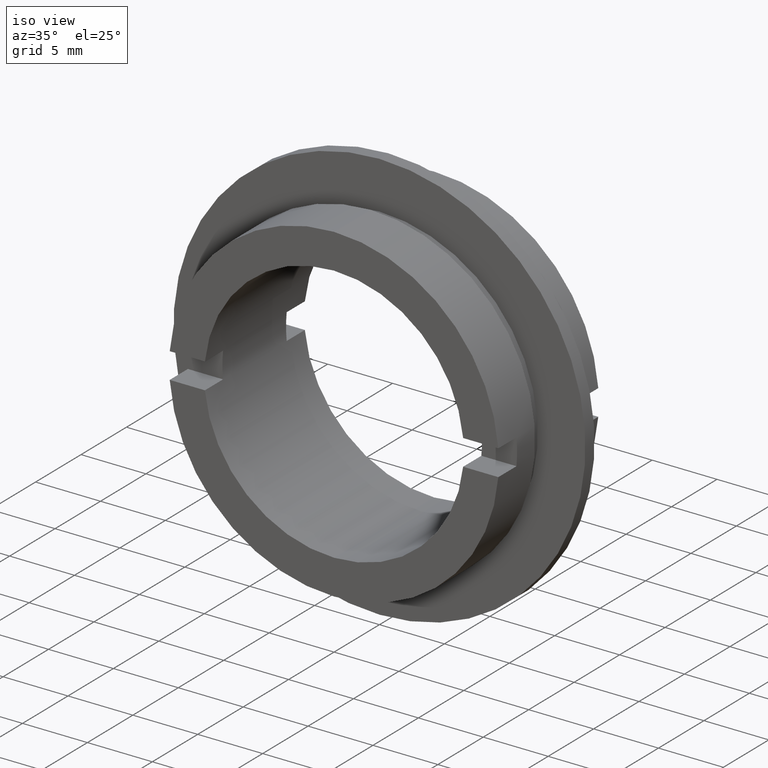
[diagram: clean part render]
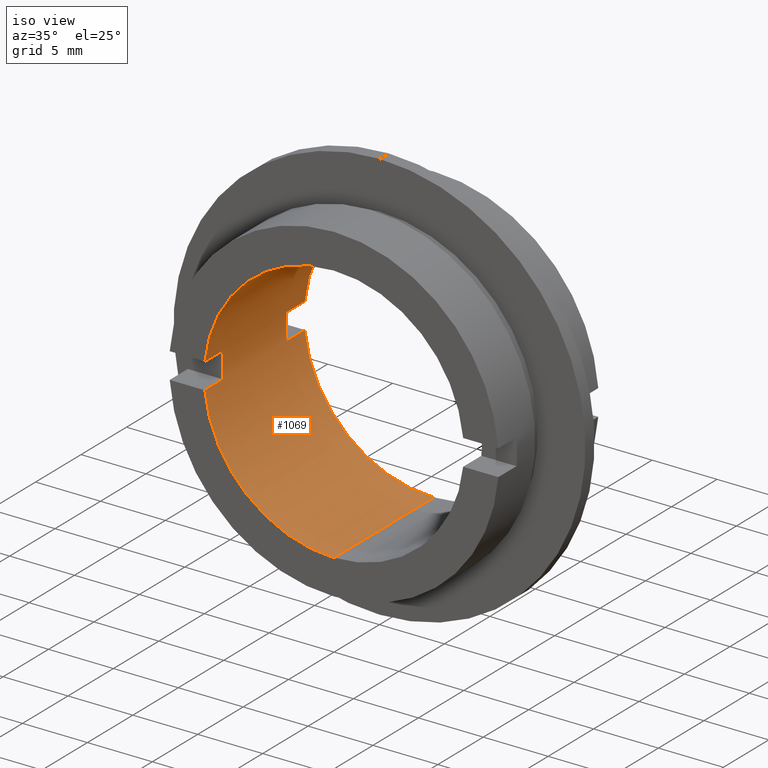
[diagram: same view with one face highlighted and labeled with its STEP entity id]
A machine part, iso view. The second image highlights one B-rep face of the part: STEP entity #1069.
In plain terms, the highlighted cylindrical surface (partial cylindrical patch) has radius 10 mm, axis along (-0, 1, -0).
Its self-contained STEP definition (entity closure, byte-faithful):
#14 = EDGE_CURVE ( 'NONE', #242, #751, #621, .T. ) ;
#21 = DIRECTION ( 'NONE',  ( -0.0000000000000000000, 1.000000000000000000, -0.0000000000000000000 ) ) ;
#22 = EDGE_CURVE ( 'NONE', #896, #659, #65, .T. ) ;
#29 = VERTEX_POINT ( 'NONE', #819 ) ;
#41 = EDGE_CURVE ( 'NONE', #730, #29, #560, .T. ) ;
#52 = CARTESIAN_POINT ( 'NONE',  ( 0.0000000000000000000, 0.0000000000000000000, 9.999999999999996400 ) ) ;
#65 = LINE ( 'NONE', #1141, #594 ) ;
#80 = ORIENTED_EDGE ( 'NONE', *, *, #572, .F. ) ;
#83 = EDGE_CURVE ( 'NONE', #858, #886, #479, .T. ) ;
#89 = EDGE_CURVE ( 'NONE', #730, #467, #763, .T. ) ;
#90 = DIRECTION ( 'NONE',  ( 0.0000000000000000000, 0.0000000000000000000, 1.000000000000000000 ) ) ;
#91 = DIRECTION ( 'NONE',  ( 0.0000000000000000000, 0.0000000000000000000, 1.000000000000000000 ) ) ;
#92 = ORIENTED_EDGE ( 'NONE', *, *, #22, .F. ) ;
#96 = ORIENTED_EDGE ( 'NONE', *, *, #14, .F. ) ;
#112 = VERTEX_POINT ( 'NONE', #645 ) ;
#143 = CARTESIAN_POINT ( 'NONE',  ( 1.224646799147352900E-015, 11.00000000000000000, -9.999999999999996400 ) ) ;
#144 = CARTESIAN_POINT ( 'NONE',  ( -9.949874371066195900, 22.67749945107591400, -0.9999999999999943400 ) ) ;
#145 = CARTESIAN_POINT ( 'NONE',  ( -9.949874371066195900, 11.00000000000000000, -0.9999999999999978900 ) ) ;
#148 = DIRECTION ( 'NONE',  ( -0.0000000000000000000, -1.000000000000000000, -0.0000000000000000000 ) ) ;
#154 = CIRCLE ( 'NONE', #1012, 9.999999999999996400 ) ;
#160 = DIRECTION ( 'NONE',  ( -0.0000000000000000000, 1.000000000000000000, -0.0000000000000000000 ) ) ;
#175 = DIRECTION ( 'NONE',  ( -0.0000000000000000000, 1.000000000000000000, -0.0000000000000000000 ) ) ;
#216 = EDGE_CURVE ( 'NONE', #467, #659, #1099, .T. ) ;
#222 = DIRECTION ( 'NONE',  ( -0.0000000000000000000, 1.000000000000000000, -0.0000000000000000000 ) ) ;
#226 = VECTOR ( 'NONE', #827, 1000.000000000000000 ) ;
#242 = VERTEX_POINT ( 'NONE', #701 ) ;
#249 = CARTESIAN_POINT ( 'NONE',  ( 0.0000000000000000000, 11.00000000000000000, 9.999999999999996400 ) ) ;
#254 = AXIS2_PLACEMENT_3D ( 'NONE', #1035, #650, #91 ) ;
#258 = VECTOR ( 'NONE', #160, 1000.000000000000000 ) ;
#270 = EDGE_CURVE ( 'NONE', #816, #896, #154, .T. ) ;
#276 = DIRECTION ( 'NONE',  ( -0.0000000000000000000, 1.000000000000000000, -0.0000000000000000000 ) ) ;
#290 = AXIS2_PLACEMENT_3D ( 'NONE', #900, #21, #874 ) ;
#292 = CYLINDRICAL_SURFACE ( 'NONE', #290, 9.999999999999996400 ) ;
#331 = CARTESIAN_POINT ( 'NONE',  ( -9.949874371066195900, 11.00000000000000000, 1.000000000000001300 ) ) ;
#343 = ORIENTED_EDGE ( 'NONE', *, *, #441, .F. ) ;
#390 = DIRECTION ( 'NONE',  ( -0.0000000000000000000, 1.000000000000000000, -0.0000000000000000000 ) ) ;
#393 = ORIENTED_EDGE ( 'NONE', *, *, #860, .F. ) ;
#403 = EDGE_CURVE ( 'NONE', #858, #816, #877, .T. ) ;
#420 = CARTESIAN_POINT ( 'NONE',  ( 0.0000000000000000000, 1.999999999999998200, 0.0000000000000000000 ) ) ;
#423 = ORIENTED_EDGE ( 'NONE', *, *, #432, .F. ) ;
#428 = CARTESIAN_POINT ( 'NONE',  ( 1.224646799147352900E-015, 0.0000000000000000000, -9.999999999999996400 ) ) ;
#432 = EDGE_CURVE ( 'NONE', #751, #559, #769, .T. ) ;
#441 = EDGE_CURVE ( 'NONE', #112, #242, #745, .T. ) ;
#454 = ORIENTED_EDGE ( 'NONE', *, *, #83, .T. ) ;
#467 = VERTEX_POINT ( 'NONE', #143 ) ;
#479 = CIRCLE ( 'NONE', #539, 9.999999999999996400 ) ;
#487 = CARTESIAN_POINT ( 'NONE',  ( 0.0000000000000000000, 11.00000000000000000, 0.0000000000000000000 ) ) ;
#493 = CARTESIAN_POINT ( 'NONE',  ( -9.949874371066195900, 9.000000000000000000, 1.000000000000001100 ) ) ;
#528 = LINE ( 'NONE', #841, #891 ) ;
#529 = AXIS2_PLACEMENT_3D ( 'NONE', #585, #175, #953 ) ;
#531 = VECTOR ( 'NONE', #809, 1000.000000000000000 ) ;
#539 = AXIS2_PLACEMENT_3D ( 'NONE', #487, #390, #90 ) ;
#546 = CARTESIAN_POINT ( 'NONE',  ( 0.0000000000000000000, 9.000000000000000000, 0.0000000000000000000 ) ) ;
#559 = VERTEX_POINT ( 'NONE', #52 ) ;
#560 = CIRCLE ( 'NONE', #889, 9.999999999999996400 ) ;
#568 = DIRECTION ( 'NONE',  ( -0.0000000000000000000, 1.000000000000000000, -0.0000000000000000000 ) ) ;
#572 = EDGE_CURVE ( 'NONE', #29, #112, #712, .T. ) ;
#575 = DIRECTION ( 'NONE',  ( 0.0000000000000000000, 0.0000000000000000000, 1.000000000000000000 ) ) ;
#581 = FACE_OUTER_BOUND ( 'NONE', #1136, .T. ) ;
#583 = CARTESIAN_POINT ( 'NONE',  ( -9.949874371066195900, 22.67749945107591400, 1.000000000000003100 ) ) ;
#585 = CARTESIAN_POINT ( 'NONE',  ( 0.0000000000000000000, 0.0000000000000000000, 0.0000000000000000000 ) ) ;
#589 = DIRECTION ( 'NONE',  ( -0.0000000000000000000, 1.000000000000000000, -0.0000000000000000000 ) ) ;
#593 = DIRECTION ( 'NONE',  ( 0.0000000000000000000, 1.000000000000000000, 0.0000000000000000000 ) ) ;
#594 = VECTOR ( 'NONE', #276, 1000.000000000000000 ) ;
#621 = LINE ( 'NONE', #649, #531 ) ;
#645 = CARTESIAN_POINT ( 'NONE',  ( -9.949874371066195900, 2.000000000000000000, -0.9999999999999995600 ) ) ;
#648 = DIRECTION ( 'NONE',  ( 0.0000000000000000000, 0.0000000000000000000, -1.000000000000000000 ) ) ;
#649 = CARTESIAN_POINT ( 'NONE',  ( -9.949874371066195900, 22.67749945107591400, 1.000000000000003800 ) ) ;
#650 = DIRECTION ( 'NONE',  ( -0.0000000000000000000, 1.000000000000000000, -0.0000000000000000000 ) ) ;
#659 = VERTEX_POINT ( 'NONE', #145 ) ;
#682 = CARTESIAN_POINT ( 'NONE',  ( -9.949874371066195900, 9.000000000000000000, -0.9999999999999974500 ) ) ;
#700 = ORIENTED_EDGE ( 'NONE', *, *, #216, .T. ) ;
#701 = CARTESIAN_POINT ( 'NONE',  ( -9.949874371066195900, 1.999999999999998200, 1.000000000000000200 ) ) ;
#712 = LINE ( 'NONE', #144, #826 ) ;
#730 = VERTEX_POINT ( 'NONE', #428 ) ;
#737 = ORIENTED_EDGE ( 'NONE', *, *, #403, .F. ) ;
#745 = CIRCLE ( 'NONE', #903, 9.999999999999996400 ) ;
#751 = VERTEX_POINT ( 'NONE', #968 ) ;
#763 = LINE ( 'NONE', #767, #258 ) ;
#767 = CARTESIAN_POINT ( 'NONE',  ( 1.224646799147352900E-015, 22.67749945107591400, -9.999999999999996400 ) ) ;
#769 = CIRCLE ( 'NONE', #529, 9.999999999999996400 ) ;
#809 = DIRECTION ( 'NONE',  ( 0.0000000000000000000, -1.000000000000000000, 0.0000000000000000000 ) ) ;
#813 = ORIENTED_EDGE ( 'NONE', *, *, #270, .F. ) ;
#816 = VERTEX_POINT ( 'NONE', #493 ) ;
#819 = CARTESIAN_POINT ( 'NONE',  ( -9.949874371066195900, 0.0000000000000000000, -1.000000000000000000 ) ) ;
#826 = VECTOR ( 'NONE', #589, 1000.000000000000000 ) ;
#827 = DIRECTION ( 'NONE',  ( 0.0000000000000000000, -1.000000000000000000, 0.0000000000000000000 ) ) ;
#841 = CARTESIAN_POINT ( 'NONE',  ( 0.0000000000000000000, 22.67749945107591400, 9.999999999999996400 ) ) ;
#858 = VERTEX_POINT ( 'NONE', #331 ) ;
#860 = EDGE_CURVE ( 'NONE', #559, #886, #528, .T. ) ;
#874 = DIRECTION ( 'NONE',  ( 0.0000000000000000000, 0.0000000000000000000, 1.000000000000000000 ) ) ;
#877 = LINE ( 'NONE', #583, #226 ) ;
#879 = ORIENTED_EDGE ( 'NONE', *, *, #41, .F. ) ;
#886 = VERTEX_POINT ( 'NONE', #249 ) ;
#889 = AXIS2_PLACEMENT_3D ( 'NONE', #1135, #568, #1097 ) ;
#891 = VECTOR ( 'NONE', #222, 1000.000000000000000 ) ;
#896 = VERTEX_POINT ( 'NONE', #682 ) ;
#900 = CARTESIAN_POINT ( 'NONE',  ( 0.0000000000000000000, 22.67749945107591400, 0.0000000000000000000 ) ) ;
#903 = AXIS2_PLACEMENT_3D ( 'NONE', #420, #593, #575 ) ;
#927 = ORIENTED_EDGE ( 'NONE', *, *, #89, .T. ) ;
#953 = DIRECTION ( 'NONE',  ( 0.0000000000000000000, 0.0000000000000000000, 1.000000000000000000 ) ) ;
#968 = CARTESIAN_POINT ( 'NONE',  ( -9.949874371066195900, 0.0000000000000000000, 1.000000000000000000 ) ) ;
#1012 = AXIS2_PLACEMENT_3D ( 'NONE', #546, #148, #648 ) ;
#1035 = CARTESIAN_POINT ( 'NONE',  ( 0.0000000000000000000, 11.00000000000000000, 0.0000000000000000000 ) ) ;
#1069 = ADVANCED_FACE ( 'NONE', ( #581 ), #292, .F. ) ;
#1097 = DIRECTION ( 'NONE',  ( 0.0000000000000000000, 0.0000000000000000000, 1.000000000000000000 ) ) ;
#1099 = CIRCLE ( 'NONE', #254, 9.999999999999996400 ) ;
#1135 = CARTESIAN_POINT ( 'NONE',  ( 0.0000000000000000000, 0.0000000000000000000, 0.0000000000000000000 ) ) ;
#1136 = EDGE_LOOP ( 'NONE', ( #879, #927, #700, #92, #813, #737, #454, #393, #423, #96, #343, #80 ) ) ;
#1141 = CARTESIAN_POINT ( 'NONE',  ( -9.949874371066195900, 22.67749945107591400, -1.000000000000000000 ) ) ;